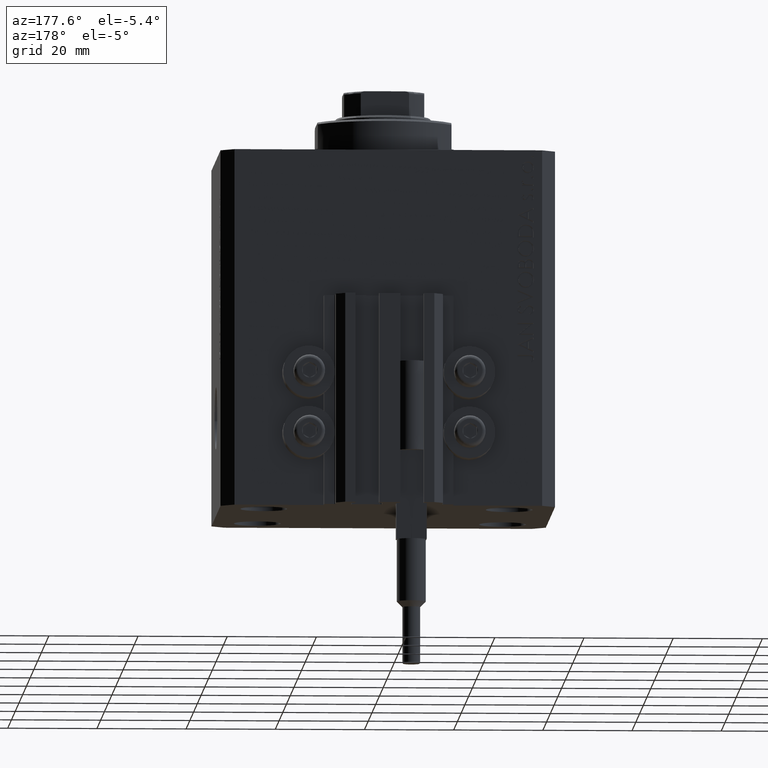
[diagram: clean part render]
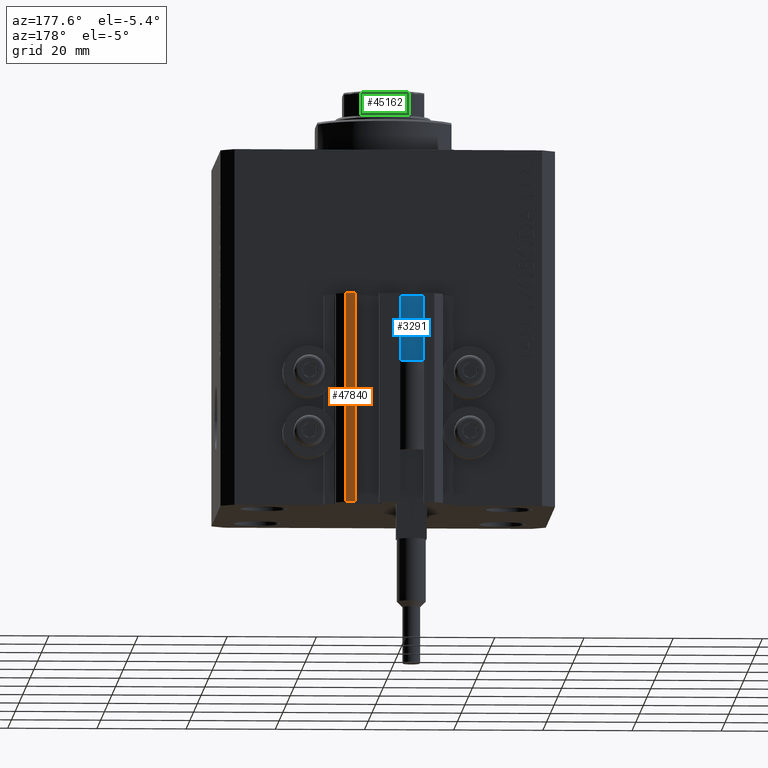
[diagram: same view with three faces highlighted in distinct colors, each labeled with its STEP entity id]
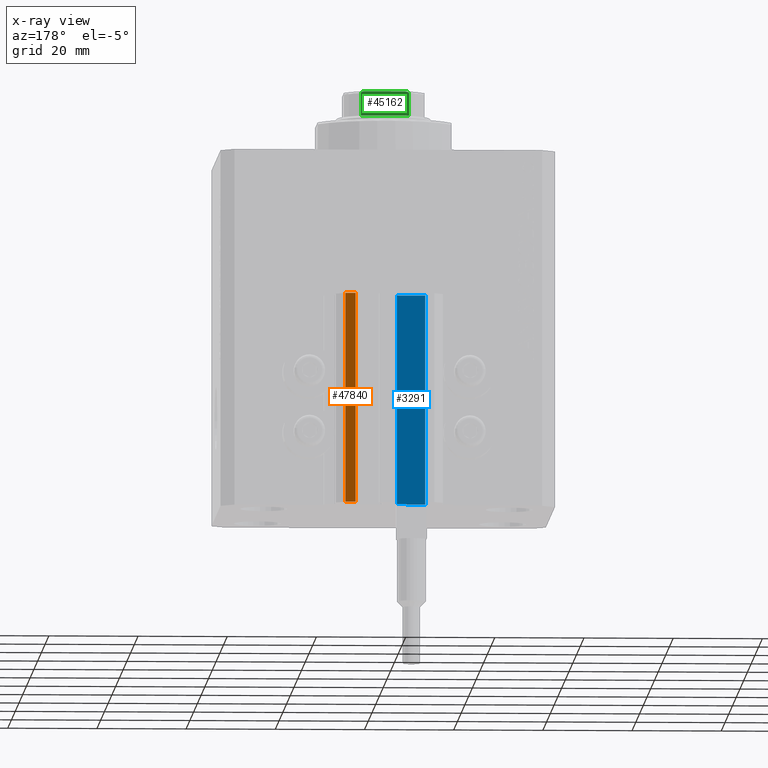
[diagram: x-ray of the same camera — body ghosted, the three highlighted faces saturated]
A machine part, auxiliary view with three faces highlighted in distinct colors.
The next image is the same camera in x-ray (body ghosted, the three faces saturated) — at least one of them is partly hidden behind the body in this view.
Their STEP definitions:

[orange] entity #47840 — the highlighted planar face has unit normal (0, 1, 0).
#1432 = CARTESIAN_POINT ( 'NONE',  ( 7.649999999999998579, 35.50000000000001421, -80.00000000000000000 ) ) ;
#2673 = EDGE_CURVE ( 'NONE', #21240, #7732, #35019, .T. ) ;
#3747 = CARTESIAN_POINT ( 'NONE',  ( 7.649999999999998579, 35.50000000000001421, -80.00000000000000000 ) ) ;
#6021 = VECTOR ( 'NONE', #34068, 1000.000000000000000 ) ;
#7732 = VERTEX_POINT ( 'NONE', #33410 ) ;
#9401 = CARTESIAN_POINT ( 'NONE',  ( 9.999999999999998224, 35.50000000000001421, -33.00000000000000000 ) ) ;
#10820 = AXIS2_PLACEMENT_3D ( 'NONE', #13191, #25241, #24125 ) ;
#12368 = DIRECTION ( 'NONE',  ( -1.000000000000000000, 0.000000000000000000, 0.000000000000000000 ) ) ;
#13191 = CARTESIAN_POINT ( 'NONE',  ( 9.999999999999998224, 35.50000000000001421, -80.00000000000000000 ) ) ;
#14607 = ORIENTED_EDGE ( 'NONE', *, *, #17074, .T. ) ;
#16083 = CARTESIAN_POINT ( 'NONE',  ( 9.999999999999998224, 35.50000000000001421, -33.00000000000000000 ) ) ;
#16101 = EDGE_CURVE ( 'NONE', #23016, #21240, #29223, .T. ) ;
#16453 = VERTEX_POINT ( 'NONE', #3747 ) ;
#17074 = EDGE_CURVE ( 'NONE', #16453, #7732, #34693, .T. ) ;
#17231 = VECTOR ( 'NONE', #39662, 1000.000000000000000 ) ;
#20374 = LINE ( 'NONE', #24251, #29715 ) ;
#21240 = VERTEX_POINT ( 'NONE', #9401 ) ;
#23016 = VERTEX_POINT ( 'NONE', #43148 ) ;
#23519 = DIRECTION ( 'NONE',  ( 0.000000000000000000, 0.000000000000000000, 1.000000000000000000 ) ) ;
#24125 = DIRECTION ( 'NONE',  ( 0.000000000000000000, 0.000000000000000000, 1.000000000000000000 ) ) ;
#24251 = CARTESIAN_POINT ( 'NONE',  ( 9.999999999999998224, 35.50000000000001421, -80.00000000000000000 ) ) ;
#24845 = CARTESIAN_POINT ( 'NONE',  ( 9.999999999999998224, 35.50000000000001421, -80.00000000000000000 ) ) ;
#25241 = DIRECTION ( 'NONE',  ( 0.000000000000000000, 1.000000000000000000, -0.000000000000000000 ) ) ;
#25490 = PLANE ( 'NONE',  #10820 ) ;
#26020 = EDGE_CURVE ( 'NONE', #23016, #16453, #20374, .T. ) ;
#29223 = LINE ( 'NONE', #24845, #17231 ) ;
#29715 = VECTOR ( 'NONE', #12368, 1000.000000000000000 ) ;
#30030 = ORIENTED_EDGE ( 'NONE', *, *, #2673, .F. ) ;
#31411 = FACE_OUTER_BOUND ( 'NONE', #34952, .T. ) ;
#31900 = VECTOR ( 'NONE', #23519, 1000.000000000000000 ) ;
#33410 = CARTESIAN_POINT ( 'NONE',  ( 7.649999999999998579, 35.50000000000001421, -33.00000000000000000 ) ) ;
#34068 = DIRECTION ( 'NONE',  ( -1.000000000000000000, 0.000000000000000000, 0.000000000000000000 ) ) ;
#34693 = LINE ( 'NONE', #1432, #31900 ) ;
#34952 = EDGE_LOOP ( 'NONE', ( #30030, #37406, #41329, #14607 ) ) ;
#35019 = LINE ( 'NONE', #16083, #6021 ) ;
#37406 = ORIENTED_EDGE ( 'NONE', *, *, #16101, .F. ) ;
#39662 = DIRECTION ( 'NONE',  ( 0.000000000000000000, 0.000000000000000000, 1.000000000000000000 ) ) ;
#41329 = ORIENTED_EDGE ( 'NONE', *, *, #26020, .T. ) ;
#43148 = CARTESIAN_POINT ( 'NONE',  ( 9.999999999999998224, 35.50000000000001421, -80.00000000000000000 ) ) ;
#47840 = ADVANCED_FACE ( 'NONE', ( #31411 ), #25490, .T. ) ;

[blue] entity #3291 — the highlighted planar face has unit normal (0, 1, 0).
#500 = ORIENTED_EDGE ( 'NONE', *, *, #2249, .T. ) ;
#2249 = EDGE_CURVE ( 'NONE', #38738, #16681, #29920, .T. ) ;
#3291 = ADVANCED_FACE ( 'NONE', ( #28746 ), #43552, .T. ) ;
#3478 = VERTEX_POINT ( 'NONE', #11976 ) ;
#4139 = LINE ( 'NONE', #29647, #16480 ) ;
#4944 = CARTESIAN_POINT ( 'NONE',  ( -8.199999999999997513, 29.50000000000000355, -80.00000000000000000 ) ) ;
#5635 = EDGE_CURVE ( 'NONE', #16681, #3478, #24019, .T. ) ;
#6062 = CARTESIAN_POINT ( 'NONE',  ( -1.800000000000000933, 29.50000000000000355, -80.00000000000000000 ) ) ;
#6694 = ORIENTED_EDGE ( 'NONE', *, *, #19672, .F. ) ;
#6816 = DIRECTION ( 'NONE',  ( 0.000000000000000000, 0.000000000000000000, 1.000000000000000000 ) ) ;
#11976 = CARTESIAN_POINT ( 'NONE',  ( -8.199999999999997513, 29.50000000000000355, -33.00000000000000000 ) ) ;
#13216 = EDGE_LOOP ( 'NONE', ( #28574, #6694, #500, #39015 ) ) ;
#13411 = VERTEX_POINT ( 'NONE', #15770 ) ;
#15461 = LINE ( 'NONE', #41702, #22705 ) ;
#15770 = CARTESIAN_POINT ( 'NONE',  ( -1.800000000000000933, 29.50000000000000355, -33.00000000000000000 ) ) ;
#16014 = DIRECTION ( 'NONE',  ( 0.000000000000000000, 0.000000000000000000, 1.000000000000000000 ) ) ;
#16480 = VECTOR ( 'NONE', #6816, 1000.000000000000000 ) ;
#16681 = VERTEX_POINT ( 'NONE', #4944 ) ;
#17680 = VECTOR ( 'NONE', #16014, 1000.000000000000000 ) ;
#19672 = EDGE_CURVE ( 'NONE', #38738, #13411, #4139, .T. ) ;
#22705 = VECTOR ( 'NONE', #45089, 1000.000000000000000 ) ;
#24019 = LINE ( 'NONE', #31551, #17680 ) ;
#24616 = AXIS2_PLACEMENT_3D ( 'NONE', #28275, #43083, #46491 ) ;
#25468 = EDGE_CURVE ( 'NONE', #13411, #3478, #15461, .T. ) ;
#28275 = CARTESIAN_POINT ( 'NONE',  ( -1.800000000000000933, 29.50000000000000355, -80.00000000000000000 ) ) ;
#28574 = ORIENTED_EDGE ( 'NONE', *, *, #25468, .F. ) ;
#28746 = FACE_OUTER_BOUND ( 'NONE', #13216, .T. ) ;
#29647 = CARTESIAN_POINT ( 'NONE',  ( -1.800000000000000933, 29.50000000000000355, -80.00000000000000000 ) ) ;
#29920 = LINE ( 'NONE', #30173, #47041 ) ;
#30173 = CARTESIAN_POINT ( 'NONE',  ( -1.800000000000000933, 29.50000000000000355, -80.00000000000000000 ) ) ;
#31551 = CARTESIAN_POINT ( 'NONE',  ( -8.199999999999997513, 29.50000000000000355, -80.00000000000000000 ) ) ;
#37929 = DIRECTION ( 'NONE',  ( -1.000000000000000000, 0.000000000000000000, 0.000000000000000000 ) ) ;
#38738 = VERTEX_POINT ( 'NONE', #6062 ) ;
#39015 = ORIENTED_EDGE ( 'NONE', *, *, #5635, .T. ) ;
#41702 = CARTESIAN_POINT ( 'NONE',  ( -1.800000000000000933, 29.50000000000000355, -33.00000000000000000 ) ) ;
#43083 = DIRECTION ( 'NONE',  ( 0.000000000000000000, 1.000000000000000000, -0.000000000000000000 ) ) ;
#43552 = PLANE ( 'NONE',  #24616 ) ;
#45089 = DIRECTION ( 'NONE',  ( -1.000000000000000000, 0.000000000000000000, 0.000000000000000000 ) ) ;
#46491 = DIRECTION ( 'NONE',  ( 0.000000000000000000, 0.000000000000000000, 1.000000000000000000 ) ) ;
#47041 = VECTOR ( 'NONE', #37929, 1000.000000000000000 ) ;

[green] entity #45162 — the highlighted planar face has unit normal (0, -1, 0).
#557 = VERTEX_POINT ( 'NONE', #5286 ) ;
#1589 = VERTEX_POINT ( 'NONE', #39801 ) ;
#1595 = EDGE_CURVE ( 'NONE', #34312, #8400, #37128, .T. ) ;
#2852 = B_SPLINE_CURVE_WITH_KNOTS ( 'NONE', 3,
 ( #16708, #27888, #20592, #38576, #15993, #19867, #12353, #39291, #6020, #42458 ),
 .UNSPECIFIED., .F., .F.,
 ( 4, 2, 2, 2, 4 ),
 ( 8.673617379884035472E-19, 0.0006221106941440978245, 0.0009331660412161529167, 0.001088693714752179487, 0.001244221388288205840 ),
 .UNSPECIFIED. ) ;
#4328 = EDGE_CURVE ( 'NONE', #34312, #1589, #39981, .T. ) ;
#5286 = CARTESIAN_POINT ( 'NONE',  ( 4.358898943540677529, 8.999999999999998224, 85.00000000000000000 ) ) ;
#6020 = CARTESIAN_POINT ( 'NONE',  ( 5.408326913195986130, 8.999999999999998224, 84.55374346731881019 ) ) ;
#6718 = CARTESIAN_POINT ( 'NONE',  ( -9.000000000000000000, 8.999999999999998224, 79.50000000000000000 ) ) ;
#6721 = VECTOR ( 'NONE', #12876, 1000.000000000000000 ) ;
#8353 = VECTOR ( 'NONE', #45797, 1000.000000000000000 ) ;
#8400 = VERTEX_POINT ( 'NONE', #34225 ) ;
#9467 = CARTESIAN_POINT ( 'NONE',  ( -9.000000000000000000, 8.999999999999998224, 85.00000000000000000 ) ) ;
#9492 = CARTESIAN_POINT ( 'NONE',  ( -5.335664150027724872, 8.999999999999998224, 84.69518433800131163 ) ) ;
#9882 = DIRECTION ( 'NONE',  ( 0.000000000000000000, -1.000000000000000000, 0.000000000000000000 ) ) ;
#10821 = ORIENTED_EDGE ( 'NONE', *, *, #4328, .T. ) ;
#10920 = CARTESIAN_POINT ( 'NONE',  ( -4.569278586016991106, 8.999999999999996447, 84.99999999999998579 ) ) ;
#12353 = CARTESIAN_POINT ( 'NONE',  ( 5.335288102212756733, 8.999999999999998224, 84.69569054027623167 ) ) ;
#12372 = EDGE_CURVE ( 'NONE', #557, #8400, #2852, .T. ) ;
#12567 = CARTESIAN_POINT ( 'NONE',  ( -4.358898943540678417, 8.999999999999998224, 85.00000000000000000 ) ) ;
#12876 = DIRECTION ( 'NONE',  ( -1.000000000000000000, -0.000000000000000000, -0.000000000000000000 ) ) ;
#13805 = CARTESIAN_POINT ( 'NONE',  ( -5.408326913195988794, 8.999999999999998224, 84.50000000000000000 ) ) ;
#14565 = AXIS2_PLACEMENT_3D ( 'NONE', #46564, #9882, #38816 ) ;
#15685 = EDGE_LOOP ( 'NONE', ( #39455, #41451, #47430, #10821, #22937, #19792 ) ) ;
#15993 = CARTESIAN_POINT ( 'NONE',  ( 5.173732970196573966, 9.000000000000000000, 84.83318086437988370 ) ) ;
#16708 = CARTESIAN_POINT ( 'NONE',  ( 4.358898943540677529, 8.999999999999998224, 85.00000000000000000 ) ) ;
#16987 = LINE ( 'NONE', #9467, #6721 ) ;
#18450 = VECTOR ( 'NONE', #32695, 1000.000000000000000 ) ;
#18928 = CARTESIAN_POINT ( 'NONE',  ( -4.778533838065926354, 9.000000000000000000, 84.97782914764695761 ) ) ;
#19792 = ORIENTED_EDGE ( 'NONE', *, *, #28478, .T. ) ;
#19867 = CARTESIAN_POINT ( 'NONE',  ( 5.297634495023396006, 9.000000000000000000, 84.73442280527802950 ) ) ;
#20592 = CARTESIAN_POINT ( 'NONE',  ( 4.775913644518301915, 9.000000000000000000, 84.97814607430834144 ) ) ;
#21857 = CARTESIAN_POINT ( 'NONE',  ( -5.077896145217240864, 8.999999999999998224, 84.87730167760669531 ) ) ;
#22221 = VERTEX_POINT ( 'NONE', #12567 ) ;
#22327 = CARTESIAN_POINT ( 'NONE',  ( -4.358898943540678417, 8.999999999999998224, 85.00000000000000000 ) ) ;
#22937 = ORIENTED_EDGE ( 'NONE', *, *, #39832, .T. ) ;
#23547 = B_SPLINE_CURVE_WITH_KNOTS ( 'NONE', 3,
 ( #46405, #27960, #36182, #9492, #24306, #39126, #21857, #18928, #10920, #22327 ),
 .UNSPECIFIED., .F., .F.,
 ( 4, 2, 2, 2, 4 ),
 ( 0.000000000000000000, 0.0001582447020888034747, 0.0003164894041776069493, 0.0006329788083552379679, 0.001265957616710502390 ),
 .UNSPECIFIED. ) ;
#24306 = CARTESIAN_POINT ( 'NONE',  ( -5.298186678102094760, 8.999999999999998224, 84.73387812150049569 ) ) ;
#24471 = PLANE ( 'NONE',  #14565 ) ;
#25225 = DIRECTION ( 'NONE',  ( -0.000000000000000000, -0.000000000000000000, 1.000000000000000000 ) ) ;
#27351 = CARTESIAN_POINT ( 'NONE',  ( 5.408326913195989682, 8.999999999999998224, -0.001000000000001000089 ) ) ;
#27661 = VECTOR ( 'NONE', #25225, 1000.000000000000000 ) ;
#27883 = FACE_OUTER_BOUND ( 'NONE', #15685, .T. ) ;
#27888 = CARTESIAN_POINT ( 'NONE',  ( 4.569272810556668674, 9.000000000000001776, 85.00000000000002842 ) ) ;
#27960 = CARTESIAN_POINT ( 'NONE',  ( -5.408326913195990571, 9.000000000000001776, 84.55357207273353026 ) ) ;
#28478 = EDGE_CURVE ( 'NONE', #38839, #22221, #23547, .T. ) ;
#29367 = LINE ( 'NONE', #33247, #27661 ) ;
#30269 = CARTESIAN_POINT ( 'NONE',  ( 5.408326913195989682, 8.999999999999998224, 79.50000000000000000 ) ) ;
#32695 = DIRECTION ( 'NONE',  ( -1.000000000000000000, -0.000000000000000000, -0.000000000000000000 ) ) ;
#33247 = CARTESIAN_POINT ( 'NONE',  ( -5.408326913195988794, 8.999999999999998224, -0.001000000000001000089 ) ) ;
#34225 = CARTESIAN_POINT ( 'NONE',  ( 5.408326913195989682, 8.999999999999998224, 84.50000000000000000 ) ) ;
#34312 = VERTEX_POINT ( 'NONE', #30269 ) ;
#34536 = EDGE_CURVE ( 'NONE', #557, #22221, #16987, .T. ) ;
#36182 = CARTESIAN_POINT ( 'NONE',  ( -5.390954572107325760, 8.999999999999996447, 84.60536285214003271 ) ) ;
#37128 = LINE ( 'NONE', #27351, #8353 ) ;
#38576 = CARTESIAN_POINT ( 'NONE',  ( 5.074490744525481212, 8.999999999999998224, 84.87872007843324695 ) ) ;
#38816 = DIRECTION ( 'NONE',  ( 0.000000000000000000, -0.000000000000000000, -1.000000000000000000 ) ) ;
#38839 = VERTEX_POINT ( 'NONE', #13805 ) ;
#39126 = CARTESIAN_POINT ( 'NONE',  ( -5.174818616237127245, 8.999999999999998224, 84.83252188465333177 ) ) ;
#39291 = CARTESIAN_POINT ( 'NONE',  ( 5.390945448132526963, 9.000000000000001776, 84.60548165389704423 ) ) ;
#39455 = ORIENTED_EDGE ( 'NONE', *, *, #34536, .F. ) ;
#39801 = CARTESIAN_POINT ( 'NONE',  ( -5.408326913195986130, 8.999999999999998224, 79.50000000000000000 ) ) ;
#39832 = EDGE_CURVE ( 'NONE', #1589, #38839, #29367, .T. ) ;
#39981 = LINE ( 'NONE', #6718, #18450 ) ;
#41451 = ORIENTED_EDGE ( 'NONE', *, *, #12372, .T. ) ;
#42458 = CARTESIAN_POINT ( 'NONE',  ( 5.408326913195989682, 8.999999999999998224, 84.50000000000000000 ) ) ;
#45162 = ADVANCED_FACE ( 'NONE', ( #27883 ), #24471, .F. ) ;
#45797 = DIRECTION ( 'NONE',  ( -0.000000000000000000, -0.000000000000000000, 1.000000000000000000 ) ) ;
#46405 = CARTESIAN_POINT ( 'NONE',  ( -5.408326913195988794, 8.999999999999998224, 84.50000000000000000 ) ) ;
#46564 = CARTESIAN_POINT ( 'NONE',  ( -9.000000000000000000, 8.999999999999998224, 85.00000000000000000 ) ) ;
#47430 = ORIENTED_EDGE ( 'NONE', *, *, #1595, .F. ) ;